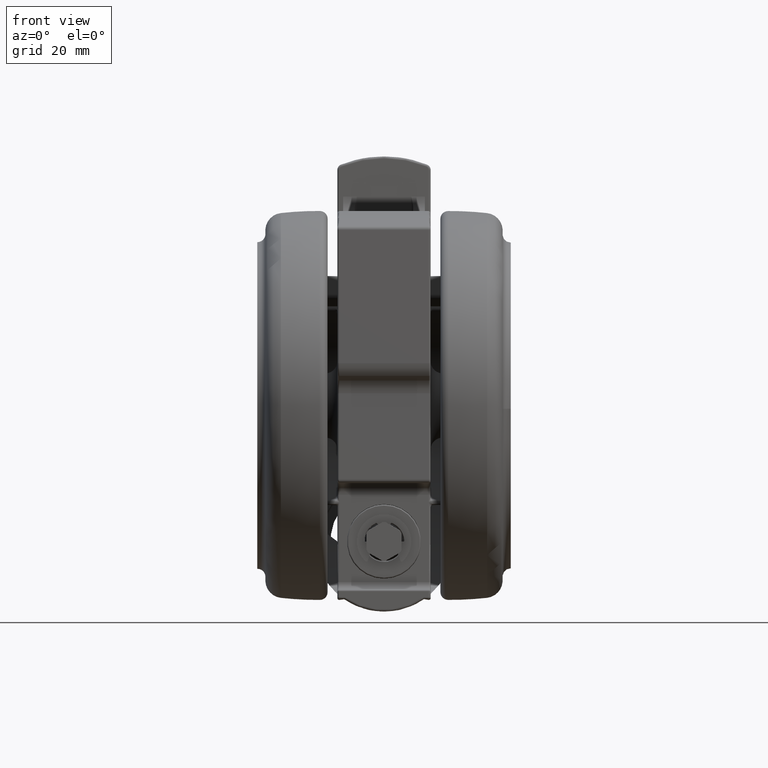
[diagram: clean part render]
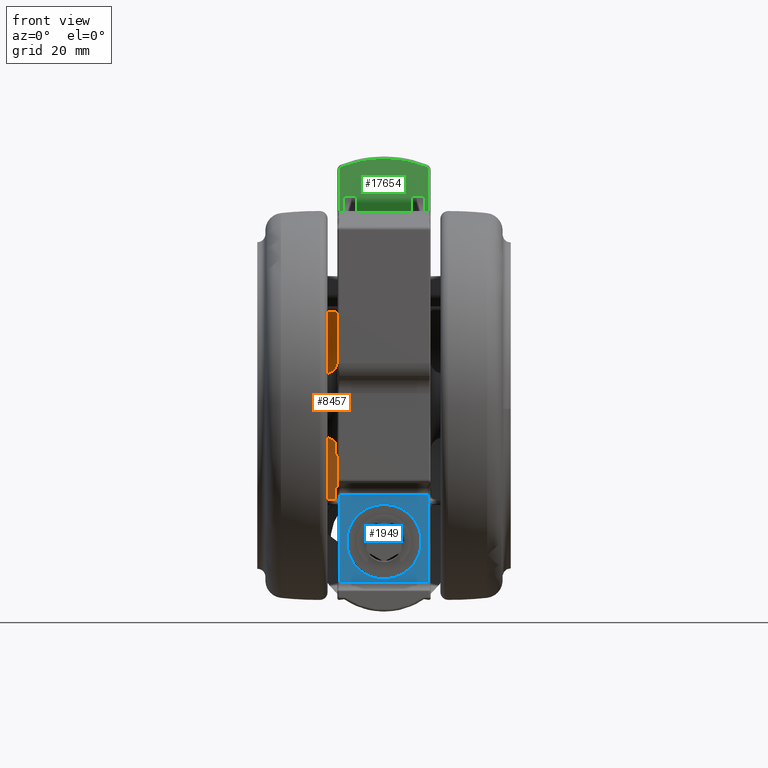
[diagram: same view with three faces highlighted in distinct colors, each labeled with its STEP entity id]
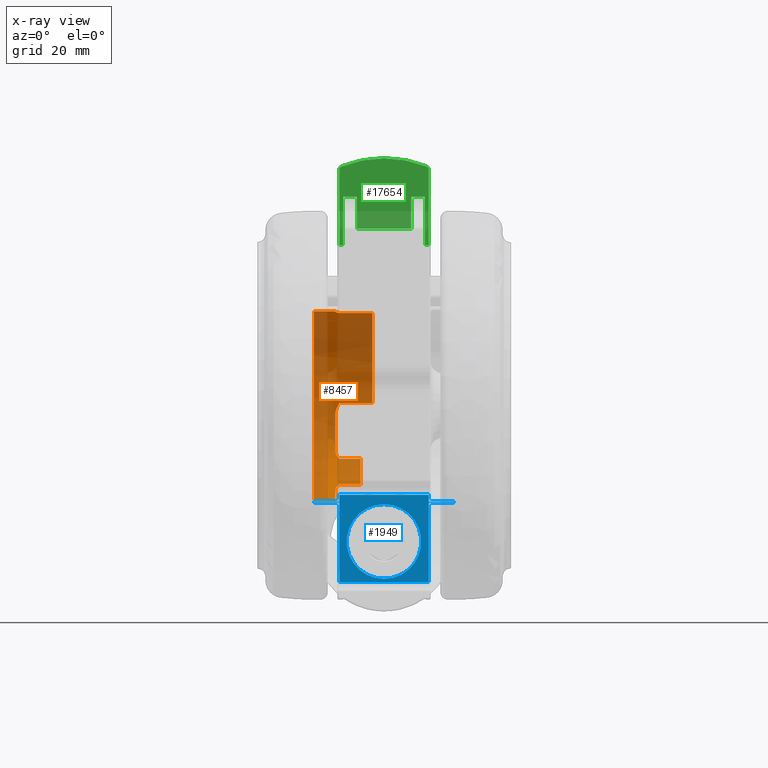
[diagram: x-ray of the same camera — body ghosted, the three highlighted faces saturated]
A machine part, front view with three faces highlighted in distinct colors.
The next image is the same camera in x-ray (body ghosted, the three faces saturated) — at least one of them is partly hidden behind the body in this view.
Their STEP definitions:

[orange] entity #8457 — the highlighted cylindrical surface (partial cylindrical patch) has radius 24.25 mm, axis along (1, 0, 0).
#801 = EDGE_CURVE ( 'NONE', #12779, #25029, #31325, .T. ) ;
#981 = VERTEX_POINT ( 'NONE', #57486 ) ;
#1265 = EDGE_CURVE ( 'NONE', #46939, #7402, #52774, .T. ) ;
#2137 = EDGE_CURVE ( 'NONE', #62066, #49156, #71058, .T. ) ;
#2409 = EDGE_CURVE ( 'NONE', #14210, #34798, #57384, .T. ) ;
#2599 = VECTOR ( 'NONE', #14964, 1000.000000000000000 ) ;
#4124 = EDGE_CURVE ( 'NONE', #49156, #33018, #28136, .T. ) ;
#4392 = CARTESIAN_POINT ( 'NONE',  ( 0.3894865235355874400, 24.24687580575268700, -45.09999999999991600 ) ) ;
#4899 = CARTESIAN_POINT ( 'NONE',  ( -12.66197508682020100, 20.68165455807734800, -38.59999999999990900 ) ) ;
#5819 = EDGE_CURVE ( 'NONE', #7402, #62066, #33775, .T. ) ;
#5834 = CARTESIAN_POINT ( 'NONE',  ( -5.169694329155469800, -23.69457813278281600, -44.34321520647245100 ) ) ;
#6572 = ORIENTED_EDGE ( 'NONE', *, *, #59681, .T. ) ;
#6876 = CARTESIAN_POINT ( 'NONE',  ( 0.0002389668261396082900, 0.0000000000000000000, -38.59999999999990900 ) ) ;
#6915 = DIRECTION ( 'NONE',  ( 0.0000000000000000000, 0.0000000000000000000, 1.000000000000000000 ) ) ;
#7402 = VERTEX_POINT ( 'NONE', #27528 ) ;
#8191 = CIRCLE ( 'NONE', #10088, 24.25000000000000000 ) ;
#8457 = ADVANCED_FACE ( 'NONE', ( #41346 ), #37435, .F. ) ;
#9640 = ORIENTED_EDGE ( 'NONE', *, *, #48659, .T. ) ;
#10017 = AXIS2_PLACEMENT_3D ( 'NONE', #13829, #58030, #20220 ) ;
#10088 = AXIS2_PLACEMENT_3D ( 'NONE', #16057, #60268, #22464 ) ;
#10331 = CARTESIAN_POINT ( 'NONE',  ( -19.69609011934873200, 14.14627585370442700, -51.09999999999990900 ) ) ;
#10608 = DIRECTION ( 'NONE',  ( 0.0000000000000000000, 0.0000000000000000000, 1.000000000000000000 ) ) ;
#10863 = CIRCLE ( 'NONE', #12641, 24.25000000000000000 ) ;
#11434 = AXIS2_PLACEMENT_3D ( 'NONE', #48393, #10608, #54753 ) ;
#12219 = CARTESIAN_POINT ( 'NONE',  ( -24.13910578942748200, 2.326562383914939000, -45.09999999999991600 ) ) ;
#12641 = AXIS2_PLACEMENT_3D ( 'NONE', #54120, #16310, #60504 ) ;
#12694 = EDGE_CURVE ( 'NONE', #71534, #46939, #58883, .T. ) ;
#12779 = VERTEX_POINT ( 'NONE', #56923 ) ;
#13210 = DIRECTION ( 'NONE',  ( 0.02026128721468460300, 0.9997947190500678900, 0.0000000000000000000 ) ) ;
#13829 = CARTESIAN_POINT ( 'NONE',  ( 0.0002389668261396082900, 0.0000000000000000000, -50.59999999999990900 ) ) ;
#14210 = VERTEX_POINT ( 'NONE', #40610 ) ;
#14964 = DIRECTION ( 'NONE',  ( -0.0000000000000000000, -0.0000000000000000000, -1.000000000000000000 ) ) ;
#16057 = CARTESIAN_POINT ( 'NONE',  ( 0.0002389668261396082900, 0.0000000000000000000, -35.59999999999991600 ) ) ;
#16310 = DIRECTION ( 'NONE',  ( 0.0000000000000000000, 0.0000000000000000000, 1.000000000000000000 ) ) ;
#17804 = ORIENTED_EDGE ( 'NONE', *, *, #12694, .T. ) ;
#17826 = EDGE_CURVE ( 'NONE', #48397, #71534, #41490, .T. ) ;
#18028 = CARTESIAN_POINT ( 'NONE',  ( -20.05958292847587300, 13.63034705467238600, -44.58796798999468800 ) ) ;
#18069 = EDGE_CURVE ( 'NONE', #32435, #61404, #10863, .T. ) ;
#18608 = VERTEX_POINT ( 'NONE', #79103 ) ;
#18612 = CARTESIAN_POINT ( 'NONE',  ( -24.11353606029355500, 2.566778903890738000, -45.09999999999991600 ) ) ;
#19000 = ORIENTED_EDGE ( 'NONE', *, *, #4124, .T. ) ;
#19291 = EDGE_CURVE ( 'NONE', #34798, #981, #58070, .T. ) ;
#20220 = DIRECTION ( 'NONE',  ( 0.02026128721468460300, 0.9997947190500678900, 0.0000000000000000000 ) ) ;
#20270 = CARTESIAN_POINT ( 'NONE',  ( 0.0002389668261396082900, 0.0000000000000000000, -45.09999999999991600 ) ) ;
#21990 = CARTESIAN_POINT ( 'NONE',  ( -10.81639354680381100, 21.70398491210967200, -45.09999999999991600 ) ) ;
#22391 = DIRECTION ( 'NONE',  ( 0.0000000000000000000, 0.0000000000000000000, 1.000000000000000000 ) ) ;
#22464 = DIRECTION ( 'NONE',  ( -0.02026128721468282600, -0.9997947190500678900, 0.0000000000000000000 ) ) ;
#22563 = EDGE_CURVE ( 'NONE', #33018, #18608, #49746, .T. ) ;
#24389 = CARTESIAN_POINT ( 'NONE',  ( -20.64628036228004100, 12.72575161771108700, -45.09999999999990200 ) ) ;
#24523 = VECTOR ( 'NONE', #22391, 1000.000000000000000 ) ;
#24918 = CARTESIAN_POINT ( 'NONE',  ( -4.178149938862046200, -23.88982799132039900, -44.96450512328923600 ) ) ;
#24953 = CARTESIAN_POINT ( 'NONE',  ( -24.19609946487434400, 1.628976622492543900, -44.94737944114919500 ) ) ;
#25029 = VERTEX_POINT ( 'NONE', #25782 ) ;
#25782 = CARTESIAN_POINT ( 'NONE',  ( -5.475811879003543900, -23.62361884076800000, -44.09999999999991600 ) ) ;
#26354 = CARTESIAN_POINT ( 'NONE',  ( -20.85114496733413200, 12.38072243571603300, -45.09999999999991600 ) ) ;
#26605 = DIRECTION ( 'NONE',  ( 0.02026128721468460300, 0.9997947190500678900, 0.0000000000000000000 ) ) ;
#27344 = CARTESIAN_POINT ( 'NONE',  ( 0.3936114866734364800, 24.24680923463187200, -45.09999183753419100 ) ) ;
#27396 = CARTESIAN_POINT ( 'NONE',  ( -2.043764977819661200, -24.16370310764210300, -51.09999999999990900 ) ) ;
#27528 = CARTESIAN_POINT ( 'NONE',  ( 0.3894865235355874400, 24.24687580575268700, -45.09999999999991600 ) ) ;
#28136 = LINE ( 'NONE', #66649, #40937 ) ;
#28326 = CARTESIAN_POINT ( 'NONE',  ( -12.12077255355474600, 21.00628234936806700, -44.58795447703074200 ) ) ;
#28456 = ORIENTED_EDGE ( 'NONE', *, *, #46560, .T. ) ;
#29659 = ORIENTED_EDGE ( 'NONE', *, *, #5819, .T. ) ;
#30440 = EDGE_LOOP ( 'NONE', ( #36425, #42806, #74922, #6572, #56587, #17804, #33208, #29659, #46124, #19000, #78758, #28456, #76711, #9640, #68427, #31731, #46953 ) ) ;
#31288 = CARTESIAN_POINT ( 'NONE',  ( -3.401711316238780200, -24.01019021731305600, -45.09999999999991600 ) ) ;
#31325 = LINE ( 'NONE', #36578, #62914 ) ;
#31329 = CARTESIAN_POINT ( 'NONE',  ( -24.24213656086330500, 0.7485394172321359100, -44.58220819589585900 ) ) ;
#31731 = ORIENTED_EDGE ( 'NONE', *, *, #19291, .T. ) ;
#32371 = CARTESIAN_POINT ( 'NONE',  ( 0.0002389668261396082900, 0.0000000000000000000, -51.09999999999990900 ) ) ;
#32435 = VERTEX_POINT ( 'NONE', #54462 ) ;
#33018 = VERTEX_POINT ( 'NONE', #4899 ) ;
#33208 = ORIENTED_EDGE ( 'NONE', *, *, #1265, .T. ) ;
#33597 = AXIS2_PLACEMENT_3D ( 'NONE', #6876, #51001, #13210 ) ;
#33775 = CIRCLE ( 'NONE', #11434, 24.25000000000000000 ) ;
#34698 = CARTESIAN_POINT ( 'NONE',  ( -12.66197508682020100, 20.68165455807734800, -44.09999999999991600 ) ) ;
#34798 = VERTEX_POINT ( 'NONE', #61513 ) ;
#35934 = CARTESIAN_POINT ( 'NONE',  ( 0.3922365089271601700, 24.24683154183343300, -45.09999727917014700 ) ) ;
#36219 = AXIS2_PLACEMENT_3D ( 'NONE', #20270, #64431, #26605 ) ;
#36425 = ORIENTED_EDGE ( 'NONE', *, *, #801, .T. ) ;
#36578 = CARTESIAN_POINT ( 'NONE',  ( -5.475811879003543900, -23.62361884076800000, -51.09999999999990900 ) ) ;
#36811 = CARTESIAN_POINT ( 'NONE',  ( -19.69609011934873200, 14.14627585370442700, -44.09999999999991600 ) ) ;
#36955 = B_SPLINE_CURVE_WITH_KNOTS ( 'NONE', 3,
 ( #36811, #43100, #18028, #62202, #24389, #68529 ),
 .UNSPECIFIED., .F., .F.,
 ( 4, 2, 4 ),
 ( -8.177094029927417500E-006, 0.001183909854632641500, 0.002375996803295210300 ),
 .UNSPECIFIED. ) ;
#37435 = CYLINDRICAL_SURFACE ( 'NONE', #42142, 24.25000000000000000 ) ;
#37650 = CARTESIAN_POINT ( 'NONE',  ( -24.24964872145147900, -0.07380451153341210900, -44.09999999999991600 ) ) ;
#37860 = CARTESIAN_POINT ( 'NONE',  ( 0.3936114866734364800, 24.24680923463187200, -50.59999999999990900 ) ) ;
#40610 = CARTESIAN_POINT ( 'NONE',  ( -24.11353606029355500, 2.566778903890738000, -45.09999999999991600 ) ) ;
#40937 = VECTOR ( 'NONE', #41209, 1000.000000000000000 ) ;
#41209 = DIRECTION ( 'NONE',  ( 0.0000000000000000000, 0.0000000000000000000, 1.000000000000000000 ) ) ;
#41346 = FACE_OUTER_BOUND ( 'NONE', #30440, .T. ) ;
#41490 = CIRCLE ( 'NONE', #10017, 24.25000000000000000 ) ;
#42142 = AXIS2_PLACEMENT_3D ( 'NONE', #32371, #6915, #44990 ) ;
#42223 = CARTESIAN_POINT ( 'NONE',  ( 0.3908615158220613600, 24.24685373229496600, -45.09999999999991600 ) ) ;
#42806 = ORIENTED_EDGE ( 'NONE', *, *, #73452, .T. ) ;
#42871 = DIRECTION ( 'NONE',  ( -0.0000000000000000000, -0.0000000000000000000, -1.000000000000000000 ) ) ;
#43100 = CARTESIAN_POINT ( 'NONE',  ( -19.87939917681704200, 13.89104857284895700, -44.34321520648364900 ) ) ;
#44418 = VERTEX_POINT ( 'NONE', #47713 ) ;
#44990 = DIRECTION ( 'NONE',  ( 0.02026128721468460300, 0.9997947190500678900, 0.0000000000000000000 ) ) ;
#45480 = EDGE_CURVE ( 'NONE', #981, #12779, #8191, .T. ) ;
#46124 = ORIENTED_EDGE ( 'NONE', *, *, #2137, .T. ) ;
#46560 = EDGE_CURVE ( 'NONE', #18608, #44418, #53616, .T. ) ;
#46939 = VERTEX_POINT ( 'NONE', #27344 ) ;
#46953 = ORIENTED_EDGE ( 'NONE', *, *, #45480, .T. ) ;
#47713 = CARTESIAN_POINT ( 'NONE',  ( -19.69609011934873200, 14.14627585370442700, -44.09999999999991600 ) ) ;
#48393 = CARTESIAN_POINT ( 'NONE',  ( 0.0002389668261396082900, 0.0000000000000000000, -45.09999999999991600 ) ) ;
#48397 = VERTEX_POINT ( 'NONE', #75914 ) ;
#48659 = EDGE_CURVE ( 'NONE', #67733, #14210, #60240, .T. ) ;
#49156 = VERTEX_POINT ( 'NONE', #50503 ) ;
#49746 = CIRCLE ( 'NONE', #33597, 24.25000000000000000 ) ;
#49993 = CARTESIAN_POINT ( 'NONE',  ( -5.475811879003543900, -23.62361884076800000, -44.09999999999991600 ) ) ;
#50503 = CARTESIAN_POINT ( 'NONE',  ( -12.66197508682020100, 20.68165455807734800, -44.09999999999991600 ) ) ;
#50645 = EDGE_CURVE ( 'NONE', #44418, #67733, #36955, .T. ) ;
#51001 = DIRECTION ( 'NONE',  ( 0.0000000000000000000, 0.0000000000000000000, 1.000000000000000000 ) ) ;
#51597 = VECTOR ( 'NONE', #54476, 1000.000000000000000 ) ;
#52774 = B_SPLINE_CURVE_WITH_KNOTS ( 'NONE', 3,
 ( #79994, #35934, #42223, #4392 ),
 .UNSPECIFIED., .F., .F.,
 ( 4, 4 ),
 ( 0.0000000000000000000, 4.125508360019084100E-006 ),
 .UNSPECIFIED. ) ;
#53616 = LINE ( 'NONE', #10331, #51597 ) ;
#54120 = CARTESIAN_POINT ( 'NONE',  ( 0.0002389668261396082900, 0.0000000000000000000, -45.09999999999991600 ) ) ;
#54462 = CARTESIAN_POINT ( 'NONE',  ( -3.401711316238780200, -24.01019021731305600, -45.09999999999991600 ) ) ;
#54476 = DIRECTION ( 'NONE',  ( -0.0000000000000000000, -0.0000000000000000000, -1.000000000000000000 ) ) ;
#54753 = DIRECTION ( 'NONE',  ( 0.02026128721468460300, 0.9997947190500678900, 0.0000000000000000000 ) ) ;
#55008 = LINE ( 'NONE', #27396, #2599 ) ;
#56587 = ORIENTED_EDGE ( 'NONE', *, *, #17826, .T. ) ;
#56923 = CARTESIAN_POINT ( 'NONE',  ( -5.475811879003543900, -23.62361884076800000, -35.59999999999991600 ) ) ;
#57384 = B_SPLINE_CURVE_WITH_KNOTS ( 'NONE', 3,
 ( #18612, #12219, #62532, #24953, #69108, #31329, #75408, #37650 ),
 .UNSPECIFIED., .F., .F.,
 ( 4, 2, 2, 4 ),
 ( 0.0000000000000000000, 0.0007152903823006703300, 0.001430580764601340000, 0.002861161529202671800 ),
 .UNSPECIFIED. ) ;
#57486 = CARTESIAN_POINT ( 'NONE',  ( -24.24964872145147900, -0.07380451153341210900, -35.59999999999991600 ) ) ;
#58030 = DIRECTION ( 'NONE',  ( -0.0000000000000000000, -0.0000000000000000000, -1.000000000000000000 ) ) ;
#58070 = LINE ( 'NONE', #79154, #24523 ) ;
#58883 = LINE ( 'NONE', #75132, #73671 ) ;
#59681 = EDGE_CURVE ( 'NONE', #61404, #48397, #55008, .T. ) ;
#59793 = CARTESIAN_POINT ( 'NONE',  ( -11.17553637595508500, 21.52499860989070900, -45.09999999999991600 ) ) ;
#60240 = CIRCLE ( 'NONE', #36219, 24.25000000000000000 ) ;
#60268 = DIRECTION ( 'NONE',  ( 0.0000000000000000000, -0.0000000000000000000, 1.000000000000000000 ) ) ;
#60504 = DIRECTION ( 'NONE',  ( 0.02026128721468460300, 0.9997947190500678900, 0.0000000000000000000 ) ) ;
#61404 = VERTEX_POINT ( 'NONE', #79732 ) ;
#61513 = CARTESIAN_POINT ( 'NONE',  ( -24.24964872145147900, -0.07380451153341210900, -44.09999999999991600 ) ) ;
#62066 = VERTEX_POINT ( 'NONE', #69220 ) ;
#62202 = CARTESIAN_POINT ( 'NONE',  ( -20.44122557973865300, 13.05102840750828900, -44.96450512328923600 ) ) ;
#62532 = CARTESIAN_POINT ( 'NONE',  ( -24.16049181748463300, 2.091756751171342200, -45.06443358678173200 ) ) ;
#62759 = CARTESIAN_POINT ( 'NONE',  ( -4.859727059349453700, -23.76054598544556400, -44.58796798999469500 ) ) ;
#62914 = VECTOR ( 'NONE', #42871, 1000.000000000000000 ) ;
#64431 = DIRECTION ( 'NONE',  ( 0.0000000000000000000, 0.0000000000000000000, 1.000000000000000000 ) ) ;
#64990 = B_SPLINE_CURVE_WITH_KNOTS ( 'NONE', 3,
 ( #49993, #5834, #62759, #24918, #69074, #31288 ),
 .UNSPECIFIED., .F., .F.,
 ( 4, 2, 4 ),
 ( -8.177094029906616100E-006, 0.001183909854632643200, 0.002375996803295193000 ),
 .UNSPECIFIED. ) ;
#66130 = CARTESIAN_POINT ( 'NONE',  ( -11.51499322897245400, 21.34437269856911000, -44.96450100867450300 ) ) ;
#66649 = CARTESIAN_POINT ( 'NONE',  ( -12.66197508682020100, 20.68165455807734800, -51.09999999999990900 ) ) ;
#67733 = VERTEX_POINT ( 'NONE', #26354 ) ;
#68427 = ORIENTED_EDGE ( 'NONE', *, *, #2409, .T. ) ;
#68529 = CARTESIAN_POINT ( 'NONE',  ( -20.85114496733413200, 12.38072243571603300, -45.09999999999991600 ) ) ;
#68815 = DIRECTION ( 'NONE',  ( 0.0000000000000000000, 0.0000000000000000000, 1.000000000000000000 ) ) ;
#69074 = CARTESIAN_POINT ( 'NONE',  ( -3.799009467593297700, -23.95389792865443100, -45.09999999999992300 ) ) ;
#69108 = CARTESIAN_POINT ( 'NONE',  ( -24.21014879841065300, 1.402593981891813400, -44.86544603148050900 ) ) ;
#69220 = CARTESIAN_POINT ( 'NONE',  ( -10.81639354680381100, 21.70398491210967200, -45.09999999999991600 ) ) ;
#71058 = B_SPLINE_CURVE_WITH_KNOTS ( 'NONE', 3,
 ( #21990, #59793, #66130, #28326, #72460, #34698 ),
 .UNSPECIFIED., .F., .F.,
 ( 4, 2, 4 ),
 ( 0.0000000000000000000, 0.001186706173453176800, 0.002373412346906353600 ),
 .UNSPECIFIED. ) ;
#71534 = VERTEX_POINT ( 'NONE', #37860 ) ;
#72460 = CARTESIAN_POINT ( 'NONE',  ( -12.39518950789743600, 20.84499236537220000, -44.34211739532018700 ) ) ;
#73452 = EDGE_CURVE ( 'NONE', #25029, #32435, #64990, .T. ) ;
#73671 = VECTOR ( 'NONE', #68815, 1000.000000000000000 ) ;
#74922 = ORIENTED_EDGE ( 'NONE', *, *, #18069, .T. ) ;
#75132 = CARTESIAN_POINT ( 'NONE',  ( 0.3936114866734364800, 24.24680923463187200, -51.09999999999990900 ) ) ;
#75408 = CARTESIAN_POINT ( 'NONE',  ( -24.25090093458611000, 0.3376341288108079500, -44.34106510764505800 ) ) ;
#75914 = CARTESIAN_POINT ( 'NONE',  ( -2.043764977819661200, -24.16370310764210300, -50.59999999999990900 ) ) ;
#76711 = ORIENTED_EDGE ( 'NONE', *, *, #50645, .T. ) ;
#78758 = ORIENTED_EDGE ( 'NONE', *, *, #22563, .T. ) ;
#79103 = CARTESIAN_POINT ( 'NONE',  ( -19.69609011934873200, 14.14627585370442700, -38.59999999999990900 ) ) ;
#79154 = CARTESIAN_POINT ( 'NONE',  ( -24.24964872145147900, -0.07380451153341210900, -51.09999999999990900 ) ) ;
#79732 = CARTESIAN_POINT ( 'NONE',  ( -2.043764977819661200, -24.16370310764210300, -45.09999999999991600 ) ) ;
#79994 = CARTESIAN_POINT ( 'NONE',  ( 0.3936114866734364800, 24.24680923463187200, -45.09999183753419100 ) ) ;

[blue] entity #1949 — the highlighted planar face has unit normal (0, 1, -0).
#389 = FACE_BOUND ( 'NONE', #20088, .T. ) ;
#1949 = ADVANCED_FACE ( 'NONE', ( #389, #78458 ), #75221, .F. ) ;
#3506 = EDGE_CURVE ( 'NONE', #19156, #4375, #25508, .T. ) ;
#3743 = CARTESIAN_POINT ( 'NONE',  ( 0.9076980549887986300, 25.03655363669908200, -44.09999999999991600 ) ) ;
#4073 = CARTESIAN_POINT ( 'NONE',  ( 0.9016196198035693100, 24.73661280204787300, -14.59999999999991400 ) ) ;
#4291 = CARTESIAN_POINT ( 'NONE',  ( 0.9076980549887986300, 25.03655363669908200, -14.59999999999991400 ) ) ;
#4375 = VERTEX_POINT ( 'NONE', #81669 ) ;
#4389 = CIRCLE ( 'NONE', #17429, 9.600000000000001400 ) ;
#5422 = VECTOR ( 'NONE', #57034, 1000.000000000000000 ) ;
#6688 = ORIENTED_EDGE ( 'NONE', *, *, #39442, .T. ) ;
#6778 = AXIS2_PLACEMENT_3D ( 'NONE', #16529, #60724, #22924 ) ;
#6924 = VECTOR ( 'NONE', #32719, 1000.000000000000100 ) ;
#7025 = VECTOR ( 'NONE', #45285, 1000.000000000000000 ) ;
#8701 = VERTEX_POINT ( 'NONE', #80990 ) ;
#9300 = LINE ( 'NONE', #48571, #74444 ) ;
#9460 = VERTEX_POINT ( 'NONE', #51081 ) ;
#10144 = CARTESIAN_POINT ( 'NONE',  ( 1.320762056738780800, 45.41922741272692600, -44.09999999999991600 ) ) ;
#10347 = EDGE_LOOP ( 'NONE', ( #60288, #43661, #63086, #75614, #52527, #13778, #21085, #16096, #6688, #64070, #69243, #63796 ) ) ;
#11003 = LINE ( 'NONE', #32669, #7025 ) ;
#12207 = ORIENTED_EDGE ( 'NONE', *, *, #52395, .F. ) ;
#13778 = ORIENTED_EDGE ( 'NONE', *, *, #17562, .T. ) ;
#15241 = LINE ( 'NONE', #76320, #42897 ) ;
#16096 = ORIENTED_EDGE ( 'NONE', *, *, #3506, .T. ) ;
#16529 = CARTESIAN_POINT ( 'NONE',  ( 1.109301906960093300, 34.98471065186480900, -32.59999999999985200 ) ) ;
#16935 = DIRECTION ( 'NONE',  ( -0.02026128721468460300, -0.9997947190500677800, 0.0000000000000000000 ) ) ;
#16986 = CARTESIAN_POINT ( 'NONE',  ( 0.9076980549887986300, 25.03655363669908200, -44.59999999999991600 ) ) ;
#17429 = AXIS2_PLACEMENT_3D ( 'NONE', #59741, #21931, #66078 ) ;
#17562 = EDGE_CURVE ( 'NONE', #66826, #64720, #81964, .T. ) ;
#19156 = VERTEX_POINT ( 'NONE', #52425 ) ;
#20088 = EDGE_LOOP ( 'NONE', ( #38209, #12207 ) ) ;
#20962 = CARTESIAN_POINT ( 'NONE',  ( 0.9076980549887986300, 25.03655363669908200, -50.60099999999990700 ) ) ;
#21085 = ORIENTED_EDGE ( 'NONE', *, *, #78445, .T. ) ;
#21315 = CARTESIAN_POINT ( 'NONE',  ( 1.320762056738780800, 45.41922741272692600, -21.09999999999991300 ) ) ;
#21931 = DIRECTION ( 'NONE',  ( 0.9997947190500678900, -0.02026128721468460300, 0.0000000000000000000 ) ) ;
#22304 = EDGE_CURVE ( 'NONE', #72785, #47664, #35921, .T. ) ;
#22857 = CARTESIAN_POINT ( 'NONE',  ( 0.9076980549887986300, 25.03655363669908200, -21.09999999999991300 ) ) ;
#22924 = DIRECTION ( 'NONE',  ( 0.02026128721468460600, 0.9997947190500677800, 0.0000000000000000000 ) ) ;
#23262 = VERTEX_POINT ( 'NONE', #71374 ) ;
#23519 = DIRECTION ( 'NONE',  ( -0.0000000000000000000, 0.0000000000000000000, -1.000000000000000000 ) ) ;
#25023 = DIRECTION ( 'NONE',  ( -0.02026128721468460300, -0.9997947190500677800, 0.0000000000000000000 ) ) ;
#25508 = B_SPLINE_CURVE_WITH_KNOTS ( 'NONE', 3,
 ( #3743, #28937, #47923, #10144 ),
 .UNSPECIFIED., .F., .F.,
 ( 4, 4 ),
 ( 0.005049800398406344500, 0.02543665920817685100 ),
 .UNSPECIFIED. ) ;
#25747 = VECTOR ( 'NONE', #47540, 1000.000000000000100 ) ;
#25866 = VERTEX_POINT ( 'NONE', #4073 ) ;
#27289 = DIRECTION ( 'NONE',  ( 0.0000000000000000000, -0.0000000000000000000, 1.000000000000000000 ) ) ;
#27351 = CARTESIAN_POINT ( 'NONE',  ( 1.045386055572126600, 31.83077822870839700, -21.09999999999991300 ) ) ;
#28236 = EDGE_CURVE ( 'NONE', #25866, #78168, #11003, .T. ) ;
#28937 = CARTESIAN_POINT ( 'NONE',  ( 1.045386055572126400, 31.83077822870839000, -44.09999999999991600 ) ) ;
#29073 = CARTESIAN_POINT ( 'NONE',  ( 0.9016196198035693100, 24.73661280204787300, -44.09999999999991600 ) ) ;
#32669 = CARTESIAN_POINT ( 'NONE',  ( 0.9016196198035693100, 24.73661280204787300, -50.60099999999990700 ) ) ;
#32719 = DIRECTION ( 'NONE',  ( -0.02026128721468460300, -0.9997947190500677800, -0.0000000000000000000 ) ) ;
#33191 = EDGE_CURVE ( 'NONE', #71853, #73042, #15241, .T. ) ;
#34536 = EDGE_CURVE ( 'NONE', #23262, #71853, #35825, .T. ) ;
#35825 = LINE ( 'NONE', #71194, #63450 ) ;
#35921 = B_SPLINE_CURVE_WITH_KNOTS ( 'NONE', 3,
 ( #21315, #52445, #27351, #65459 ),
 .UNSPECIFIED., .F., .F.,
 ( 4, 4 ),
 ( -0.02543665920817685100, -0.005049800398406374000 ),
 .UNSPECIFIED. ) ;
#36222 = CIRCLE ( 'NONE', #6778, 9.600000000000001400 ) ;
#37880 = EDGE_CURVE ( 'NONE', #47664, #55902, #61098, .T. ) ;
#38209 = ORIENTED_EDGE ( 'NONE', *, *, #53329, .F. ) ;
#38759 = CARTESIAN_POINT ( 'NONE',  ( 0.8053825987398588500, 19.98778986611548400, -14.59999999999991400 ) ) ;
#38978 = CARTESIAN_POINT ( 'NONE',  ( 0.9076980549887986300, 25.03655363669908200, -50.59999999999990900 ) ) ;
#39037 = LINE ( 'NONE', #76004, #5422 ) ;
#39442 = EDGE_CURVE ( 'NONE', #4375, #72785, #39037, .T. ) ;
#40304 = EDGE_CURVE ( 'NONE', #73042, #66826, #9300, .T. ) ;
#42897 = VECTOR ( 'NONE', #69781, 1000.000000000000100 ) ;
#43661 = ORIENTED_EDGE ( 'NONE', *, *, #74994, .T. ) ;
#45285 = DIRECTION ( 'NONE',  ( -0.0000000000000000000, 0.0000000000000000000, -1.000000000000000000 ) ) ;
#47540 = DIRECTION ( 'NONE',  ( 0.02026128721468460300, 0.9997947190500677800, 0.0000000000000000000 ) ) ;
#47664 = VERTEX_POINT ( 'NONE', #22857 ) ;
#47923 = CARTESIAN_POINT ( 'NONE',  ( 1.183074056155453600, 38.62500282071766800, -44.09999999999991600 ) ) ;
#48396 = CARTESIAN_POINT ( 'NONE',  ( 0.8661664603839126500, 22.98717402326568800, -21.09999999999991300 ) ) ;
#48571 = CARTESIAN_POINT ( 'NONE',  ( 0.9016196198035693100, 24.73661280204787300, -51.09999999999990900 ) ) ;
#51081 = CARTESIAN_POINT ( 'NONE',  ( 0.9147935496991214100, 25.38668134898415500, -32.59999999999985200 ) ) ;
#52395 = EDGE_CURVE ( 'NONE', #9460, #8701, #36222, .T. ) ;
#52425 = CARTESIAN_POINT ( 'NONE',  ( 0.9076980549887986300, 25.03655363669908200, -44.09999999999991600 ) ) ;
#52445 = CARTESIAN_POINT ( 'NONE',  ( 1.183074056155453800, 38.62500282071767500, -21.09999999999991300 ) ) ;
#52527 = ORIENTED_EDGE ( 'NONE', *, *, #40304, .T. ) ;
#53329 = EDGE_CURVE ( 'NONE', #8701, #9460, #4389, .T. ) ;
#53528 = CARTESIAN_POINT ( 'NONE',  ( 0.8661664603839126500, 22.98717402326568800, -44.09999999999991600 ) ) ;
#54798 = DIRECTION ( 'NONE',  ( 0.0000000000000000000, -0.0000000000000000000, 1.000000000000000000 ) ) ;
#55902 = VERTEX_POINT ( 'NONE', #4291 ) ;
#57034 = DIRECTION ( 'NONE',  ( 0.0000000000000000000, -0.0000000000000000000, 1.000000000000000000 ) ) ;
#57714 = EDGE_CURVE ( 'NONE', #55902, #25866, #74098, .T. ) ;
#57791 = CARTESIAN_POINT ( 'NONE',  ( 1.320762056738780800, 45.41922741272692600, -21.09999999999991300 ) ) ;
#59741 = CARTESIAN_POINT ( 'NONE',  ( 1.109301906960093300, 34.98471065186480900, -32.59999999999985200 ) ) ;
#60288 = ORIENTED_EDGE ( 'NONE', *, *, #28236, .T. ) ;
#60307 = CARTESIAN_POINT ( 'NONE',  ( 0.8053825987398588500, 19.98778986611548400, -50.59999999999990900 ) ) ;
#60724 = DIRECTION ( 'NONE',  ( 0.9997947190500678900, -0.02026128721468460300, 0.0000000000000000000 ) ) ;
#61098 = LINE ( 'NONE', #20962, #71925 ) ;
#62853 = DIRECTION ( 'NONE',  ( -0.9997947190500678900, 0.02026128721468460600, 0.0000000000000000000 ) ) ;
#63086 = ORIENTED_EDGE ( 'NONE', *, *, #34536, .T. ) ;
#63139 = VECTOR ( 'NONE', #54798, 1000.000000000000000 ) ;
#63450 = VECTOR ( 'NONE', #77468, 1000.000000000000000 ) ;
#63796 = ORIENTED_EDGE ( 'NONE', *, *, #57714, .T. ) ;
#64070 = ORIENTED_EDGE ( 'NONE', *, *, #22304, .T. ) ;
#64720 = VERTEX_POINT ( 'NONE', #38978 ) ;
#64936 = LINE ( 'NONE', #48396, #77689 ) ;
#65459 = CARTESIAN_POINT ( 'NONE',  ( 0.9076980549887986300, 25.03655363669908200, -21.09999999999991300 ) ) ;
#66078 = DIRECTION ( 'NONE',  ( 0.02026128721468460600, 0.9997947190500677800, 0.0000000000000000000 ) ) ;
#66826 = VERTEX_POINT ( 'NONE', #71772 ) ;
#69243 = ORIENTED_EDGE ( 'NONE', *, *, #37880, .T. ) ;
#69781 = DIRECTION ( 'NONE',  ( 0.02026128721468460300, 0.9997947190500677800, 0.0000000000000000000 ) ) ;
#70604 = CARTESIAN_POINT ( 'NONE',  ( 0.9016196198035693100, 24.73661280204787300, -21.09999999999991300 ) ) ;
#71194 = CARTESIAN_POINT ( 'NONE',  ( 0.8661664603839126500, 22.98717402326568800, -44.59999999999991600 ) ) ;
#71374 = CARTESIAN_POINT ( 'NONE',  ( 0.8661664603839126500, 22.98717402326568800, -21.09999999999991300 ) ) ;
#71772 = CARTESIAN_POINT ( 'NONE',  ( 0.9016196198035693100, 24.73661280204787300, -50.59999999999990900 ) ) ;
#71853 = VERTEX_POINT ( 'NONE', #53528 ) ;
#71925 = VECTOR ( 'NONE', #27289, 1000.000000000000000 ) ;
#72785 = VERTEX_POINT ( 'NONE', #57791 ) ;
#73042 = VERTEX_POINT ( 'NONE', #29073 ) ;
#73556 = AXIS2_PLACEMENT_3D ( 'NONE', #81231, #62853, #25023 ) ;
#74098 = LINE ( 'NONE', #38759, #6924 ) ;
#74444 = VECTOR ( 'NONE', #23519, 1000.000000000000000 ) ;
#74994 = EDGE_CURVE ( 'NONE', #78168, #23262, #64936, .T. ) ;
#75221 = PLANE ( 'NONE',  #73556 ) ;
#75614 = ORIENTED_EDGE ( 'NONE', *, *, #33191, .T. ) ;
#76004 = CARTESIAN_POINT ( 'NONE',  ( 1.320762056738780800, 45.41922741272692600, -20.59999999999991300 ) ) ;
#76320 = CARTESIAN_POINT ( 'NONE',  ( 0.8053825987398588500, 19.98778986611548400, -44.09999999999991600 ) ) ;
#77468 = DIRECTION ( 'NONE',  ( -0.0000000000000000000, -0.0000000000000000000, -1.000000000000000000 ) ) ;
#77689 = VECTOR ( 'NONE', #16935, 1000.000000000000100 ) ;
#78168 = VERTEX_POINT ( 'NONE', #70604 ) ;
#78445 = EDGE_CURVE ( 'NONE', #64720, #19156, #79842, .T. ) ;
#78458 = FACE_OUTER_BOUND ( 'NONE', #10347, .T. ) ;
#79842 = LINE ( 'NONE', #16986, #63139 ) ;
#80990 = CARTESIAN_POINT ( 'NONE',  ( 1.303810264221065400, 44.58273995474545600, -32.59999999999985200 ) ) ;
#81231 = CARTESIAN_POINT ( 'NONE',  ( 0.8053825987398588500, 19.98778986611548400, -50.60099999999990700 ) ) ;
#81669 = CARTESIAN_POINT ( 'NONE',  ( 1.320762056738780800, 45.41922741272692600, -44.09999999999991600 ) ) ;
#81964 = LINE ( 'NONE', #60307, #25747 ) ;

[green] entity #17654 — the highlighted planar face has unit normal (0, 1, 0.0036).
#1108 = VERTEX_POINT ( 'NONE', #72076 ) ;
#2338 = CARTESIAN_POINT ( 'NONE',  ( -27.12078588235577600, -40.61310014745410500, -44.59999999999991600 ) ) ;
#2600 = LINE ( 'NONE', #2338, #69847 ) ;
#3581 = LINE ( 'NONE', #10796, #35254 ) ;
#5194 = CARTESIAN_POINT ( 'NONE',  ( -27.12078588235577600, -40.61310014745410500, -21.09999999999991300 ) ) ;
#5800 = EDGE_CURVE ( 'NONE', #66955, #30920, #69323, .T. ) ;
#5856 = CIRCLE ( 'NONE', #41063, 0.9999999999999977800 ) ;
#5975 = AXIS2_PLACEMENT_3D ( 'NONE', #61208, #23416, #67525 ) ;
#6463 = EDGE_CURVE ( 'NONE', #55943, #36594, #64423, .T. ) ;
#7233 = CIRCLE ( 'NONE', #5975, 29.50000000000000400 ) ;
#7982 = EDGE_CURVE ( 'NONE', #1108, #56135, #5856, .T. ) ;
#8336 = ORIENTED_EDGE ( 'NONE', *, *, #59912, .T. ) ;
#8657 = DIRECTION ( 'NONE',  ( -0.9998615448069980700, 0.01664004856252966300, 0.0000000000000000000 ) ) ;
#9285 = VECTOR ( 'NONE', #54071, 1000.000000000000000 ) ;
#10796 = CARTESIAN_POINT ( 'NONE',  ( -27.45965121897575000, -60.97472455505017300, -21.09999999999991300 ) ) ;
#10846 = DIRECTION ( 'NONE',  ( 0.01664004856252966300, 0.9998615448069980700, 0.0000000000000000000 ) ) ;
#11070 = DIRECTION ( 'NONE',  ( -0.01664004856252966600, -0.9998615448069981800, 0.0000000000000000000 ) ) ;
#11111 = VECTOR ( 'NONE', #64017, 1000.000000000000000 ) ;
#11379 = VECTOR ( 'NONE', #33133, 999.9999999999998900 ) ;
#14643 = EDGE_CURVE ( 'NONE', #36594, #38258, #29918, .T. ) ;
#14879 = ORIENTED_EDGE ( 'NONE', *, *, #38376, .T. ) ;
#15509 = EDGE_CURVE ( 'NONE', #26410, #63627, #22017, .T. ) ;
#16519 = VERTEX_POINT ( 'NONE', #5194 ) ;
#17654 = ADVANCED_FACE ( 'NONE', ( #19811 ), #42294, .F. ) ;
#19492 = LINE ( 'NONE', #70206, #67886 ) ;
#19688 = DIRECTION ( 'NONE',  ( 0.01664004856252959300, 0.9998615448069981800, 0.0000000000000000000 ) ) ;
#19811 = FACE_OUTER_BOUND ( 'NONE', #26239, .T. ) ;
#20438 = CARTESIAN_POINT ( 'NONE',  ( -27.50132698321843700, -63.47892361793880400, -44.09999999999991600 ) ) ;
#22017 = CIRCLE ( 'NONE', #71175, 0.9999999999999977800 ) ;
#23196 = CARTESIAN_POINT ( 'NONE',  ( -27.32943528156750500, -53.15035386008251800, -25.59999999999991600 ) ) ;
#23209 = DIRECTION ( 'NONE',  ( 0.0000000000000000000, 0.0000000000000000000, 1.000000000000000000 ) ) ;
#23416 = DIRECTION ( 'NONE',  ( 0.9998615448069980700, -0.01664004856252966300, -0.0000000000000000000 ) ) ;
#23563 = ORIENTED_EDGE ( 'NONE', *, *, #65866, .T. ) ;
#23621 = CARTESIAN_POINT ( 'NONE',  ( -27.44300831546758000, -59.97469146324653600, -43.09999999999991600 ) ) ;
#23970 = CARTESIAN_POINT ( 'NONE',  ( -27.19146243321050300, -44.85988855397139500, -25.59999999999991600 ) ) ;
#24222 = VERTEX_POINT ( 'NONE', #58780 ) ;
#25160 = ORIENTED_EDGE ( 'NONE', *, *, #14643, .T. ) ;
#26239 = EDGE_LOOP ( 'NONE', ( #62682, #37804, #69753, #43070, #25160, #14879, #38364, #8336, #58497, #23563, #66742, #60271, #57810, #37863 ) ) ;
#26410 = VERTEX_POINT ( 'NONE', #30481 ) ;
#26866 = VECTOR ( 'NONE', #46983, 999.9999999999998900 ) ;
#28047 = LINE ( 'NONE', #72834, #9285 ) ;
#28239 = DIRECTION ( 'NONE',  ( 0.01664004856252959300, 0.9998615448069981800, 0.0000000000000000000 ) ) ;
#29918 = LINE ( 'NONE', #44922, #11111 ) ;
#29926 = DIRECTION ( 'NONE',  ( 0.01664004856253082900, 0.9998615448069980700, 0.0000000000000000000 ) ) ;
#30481 = CARTESIAN_POINT ( 'NONE',  ( -27.44300831546758000, -59.97469146324653600, -44.09999999999991600 ) ) ;
#30920 = VERTEX_POINT ( 'NONE', #74936 ) ;
#31414 = CARTESIAN_POINT ( 'NONE',  ( -27.32943528156750500, -53.15035386008251800, -22.09999999999991300 ) ) ;
#31736 = EDGE_CURVE ( 'NONE', #73305, #49907, #2600, .T. ) ;
#33133 = DIRECTION ( 'NONE',  ( 0.01664004856252966600, 0.9998615448069981800, 0.0000000000000000000 ) ) ;
#35254 = VECTOR ( 'NONE', #11070, 999.9999999999998900 ) ;
#35616 = CARTESIAN_POINT ( 'NONE',  ( -27.12078588235577600, -40.61310014745410500, -44.59999999999991600 ) ) ;
#35770 = VECTOR ( 'NONE', #54205, 1000.000000000000000 ) ;
#36594 = VERTEX_POINT ( 'NONE', #23196 ) ;
#37630 = VECTOR ( 'NONE', #23209, 1000.000000000000000 ) ;
#37804 = ORIENTED_EDGE ( 'NONE', *, *, #44356, .T. ) ;
#37863 = ORIENTED_EDGE ( 'NONE', *, *, #43884, .F. ) ;
#38258 = VERTEX_POINT ( 'NONE', #31414 ) ;
#38364 = ORIENTED_EDGE ( 'NONE', *, *, #55632, .T. ) ;
#38376 = EDGE_CURVE ( 'NONE', #38258, #24222, #19492, .T. ) ;
#38378 = CARTESIAN_POINT ( 'NONE',  ( -27.45847788701582800, -60.90422178568572800, -43.46842105263149800 ) ) ;
#39162 = CARTESIAN_POINT ( 'NONE',  ( -27.19146243321050300, -44.85988855397139500, -39.59999999999991600 ) ) ;
#40226 = DIRECTION ( 'NONE',  ( 0.0000000000000000000, 0.0000000000000000000, 1.000000000000000000 ) ) ;
#41063 = AXIS2_PLACEMENT_3D ( 'NONE', #46447, #8657, #52790 ) ;
#41183 = AXIS2_PLACEMENT_3D ( 'NONE', #80066, #48645, #10846 ) ;
#42294 = PLANE ( 'NONE',  #41183 ) ;
#43070 = ORIENTED_EDGE ( 'NONE', *, *, #6463, .T. ) ;
#43884 = EDGE_CURVE ( 'NONE', #30920, #49907, #46999, .T. ) ;
#44356 = EDGE_CURVE ( 'NONE', #66955, #76445, #61807, .T. ) ;
#44922 = CARTESIAN_POINT ( 'NONE',  ( -27.32943528156750500, -53.15035386008251800, -25.09999999999991300 ) ) ;
#46447 = CARTESIAN_POINT ( 'NONE',  ( -27.44300831546758000, -59.97469146324653600, -22.09999999999991300 ) ) ;
#46683 = CARTESIAN_POINT ( 'NONE',  ( -27.09455299785571500, -39.03682755892085500, -43.09999999999991600 ) ) ;
#46983 = DIRECTION ( 'NONE',  ( -0.01664004856252966600, -0.9998615448069981800, -0.0000000000000000000 ) ) ;
#46999 = LINE ( 'NONE', #46683, #78595 ) ;
#47563 = CARTESIAN_POINT ( 'NONE',  ( -27.32943528156750500, -53.15035386008251800, -40.09999999999991600 ) ) ;
#47983 = CARTESIAN_POINT ( 'NONE',  ( -27.32943528156750500, -53.15035386008251800, -39.59999999999991600 ) ) ;
#48645 = DIRECTION ( 'NONE',  ( -0.9998615448069980700, 0.01664004856252966300, 0.0000000000000000000 ) ) ;
#49907 = VERTEX_POINT ( 'NONE', #71940 ) ;
#52215 = EDGE_CURVE ( 'NONE', #26410, #73305, #70814, .T. ) ;
#52790 = DIRECTION ( 'NONE',  ( 0.01664004856253082900, 0.9998615448069980700, 0.0000000000000000000 ) ) ;
#54071 = DIRECTION ( 'NONE',  ( -0.0000000000000000000, -0.0000000000000000000, 1.000000000000000000 ) ) ;
#54205 = DIRECTION ( 'NONE',  ( 0.0000000000000000000, 0.0000000000000000000, -1.000000000000000000 ) ) ;
#55410 = CARTESIAN_POINT ( 'NONE',  ( -27.19146243321050300, -44.85988855397139500, -39.60000000000491800 ) ) ;
#55632 = EDGE_CURVE ( 'NONE', #24222, #16519, #71218, .T. ) ;
#55943 = VERTEX_POINT ( 'NONE', #23970 ) ;
#56135 = VERTEX_POINT ( 'NONE', #70539 ) ;
#57810 = ORIENTED_EDGE ( 'NONE', *, *, #31736, .T. ) ;
#58497 = ORIENTED_EDGE ( 'NONE', *, *, #7982, .F. ) ;
#58780 = CARTESIAN_POINT ( 'NONE',  ( -27.12078588235577600, -40.61310014745410500, -22.09999999999991300 ) ) ;
#59452 = CARTESIAN_POINT ( 'NONE',  ( -27.32943528156750500, -53.15035386008251800, -25.59999999999991600 ) ) ;
#59912 = EDGE_CURVE ( 'NONE', #16519, #56135, #3581, .T. ) ;
#60271 = ORIENTED_EDGE ( 'NONE', *, *, #52215, .T. ) ;
#61208 = CARTESIAN_POINT ( 'NONE',  ( -27.00212552634254900, -33.48307727372886000, -32.59999999999991600 ) ) ;
#61807 = LINE ( 'NONE', #39162, #11379 ) ;
#62682 = ORIENTED_EDGE ( 'NONE', *, *, #5800, .F. ) ;
#63257 = CARTESIAN_POINT ( 'NONE',  ( -27.12078588235577600, -40.61310014745410500, -44.09999999999991600 ) ) ;
#63627 = VERTEX_POINT ( 'NONE', #38378 ) ;
#64017 = DIRECTION ( 'NONE',  ( 0.0000000000000000000, 0.0000000000000000000, 1.000000000000000000 ) ) ;
#64423 = LINE ( 'NONE', #59452, #26866 ) ;
#64876 = VECTOR ( 'NONE', #77229, 999.9999999999998900 ) ;
#65866 = EDGE_CURVE ( 'NONE', #1108, #63627, #7233, .T. ) ;
#66742 = ORIENTED_EDGE ( 'NONE', *, *, #15509, .F. ) ;
#66955 = VERTEX_POINT ( 'NONE', #47983 ) ;
#67525 = DIRECTION ( 'NONE',  ( 0.01664004856252967000, 0.9998615448069980700, 1.881733940042637900E-015 ) ) ;
#67715 = DIRECTION ( 'NONE',  ( -0.9998615448069980700, 0.01664004856252966300, 0.0000000000000000000 ) ) ;
#67886 = VECTOR ( 'NONE', #19688, 999.9999999999998900 ) ;
#69323 = LINE ( 'NONE', #47563, #35770 ) ;
#69753 = ORIENTED_EDGE ( 'NONE', *, *, #81550, .T. ) ;
#69847 = VECTOR ( 'NONE', #40226, 1000.000000000000000 ) ;
#70206 = CARTESIAN_POINT ( 'NONE',  ( -27.09455299785571500, -39.03682755892085500, -22.09999999999991300 ) ) ;
#70539 = CARTESIAN_POINT ( 'NONE',  ( -27.44300831546758000, -59.97469146324653600, -21.09999999999991300 ) ) ;
#70814 = LINE ( 'NONE', #20438, #64876 ) ;
#71175 = AXIS2_PLACEMENT_3D ( 'NONE', #23621, #67715, #29926 ) ;
#71218 = LINE ( 'NONE', #35616, #37630 ) ;
#71940 = CARTESIAN_POINT ( 'NONE',  ( -27.12078588235577600, -40.61310014745410500, -43.09999999999991600 ) ) ;
#72076 = CARTESIAN_POINT ( 'NONE',  ( -27.45847788701582800, -60.90422178568572800, -21.73157894736833000 ) ) ;
#72834 = CARTESIAN_POINT ( 'NONE',  ( -27.19146243321050300, -44.85988855397139500, -44.59999999999991600 ) ) ;
#73305 = VERTEX_POINT ( 'NONE', #63257 ) ;
#74936 = CARTESIAN_POINT ( 'NONE',  ( -27.32943528156750500, -53.15035386008251800, -43.09999999999991600 ) ) ;
#76445 = VERTEX_POINT ( 'NONE', #55410 ) ;
#77229 = DIRECTION ( 'NONE',  ( 0.01664004856252966600, 0.9998615448069981800, -0.0000000000000000000 ) ) ;
#78595 = VECTOR ( 'NONE', #28239, 999.9999999999998900 ) ;
#80066 = CARTESIAN_POINT ( 'NONE',  ( -27.50132698321843700, -63.47892361793880400, -44.59999999999991600 ) ) ;
#81550 = EDGE_CURVE ( 'NONE', #76445, #55943, #28047, .T. ) ;